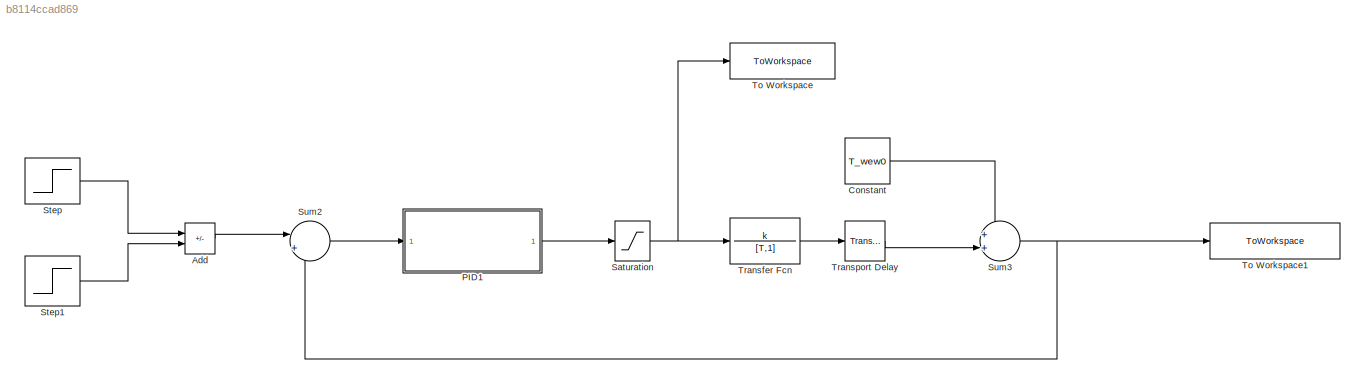
MODEL slx_b8114ccad869
KIND model
CONFIG AbsTol = auto
CONFIG EnableMultiTasking = off
CONFIG FixedStep = auto
CONFIG MaxStep = 0.01
CONFIG MinStep = auto
CONFIG RelTol = 1e-3
CONFIG SampleTimeConstraint = Unconstrained
CONFIG SolverName = VariableStepAuto
CONFIG StartTime = 0.0
CONFIG StopTime = 10.0
BLOCK [Sum] Add
  IconShape = rectangular
  Inputs = -+
BLOCK [Constant] Constant
  Value = T_wew0
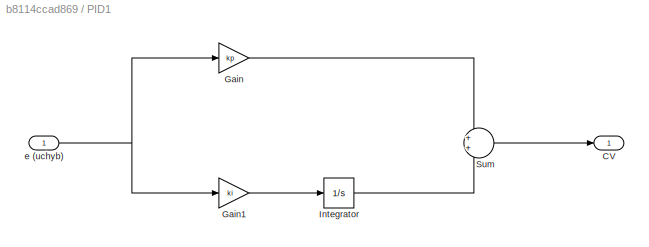
BLOCK [SubSystem] PID1
BLOCK [Outport] PID1/CV
BLOCK [Gain] PID1/Gain
  Gain = kp
BLOCK [Gain] PID1/Gain1
  Gain = ki
BLOCK [Integrator] PID1/Integrator
BLOCK [Sum] PID1/Sum
BLOCK [Inport] PID1/e (uchyb)
BLOCK [Saturate] Saturation
  UpperLimit = 0.1
BLOCK [Step] Step
  SampleTime = 0
BLOCK [Step] Step1
  After = T_wew_SP_0 + delta_Twew_SP
  Before = T_wew_SP_0
  SampleTime = 0
  Time = t_wew_SP
BLOCK [Sum] Sum2
  Inputs = |+-
BLOCK [Sum] Sum3
  Inputs = ++|
BLOCK [ToWorkspace] To Workspace
  FixptAsFi = on
  MaxDataPoints = inf
  SampleTime = -1
  VariableName = dwupunktowa_cv
BLOCK [ToWorkspace] To Workspace1
  FixptAsFi = on
  MaxDataPoints = inf
  SampleTime = -1
  VariableName = output
BLOCK [TransferFcn] Transfer Fcn
  Denominator = [T,1]
  Numerator = k
BLOCK [TransportDelay] Transport Delay
  DelayTime = To
LINE Add:1 -> Sum2:1
LINE Constant:1 -> Sum3:1
LINE PID1/Gain1:1 -> PID1/Integrator:1
LINE PID1/Gain:1 -> PID1/Sum:1
LINE PID1/Integrator:1 -> PID1/Sum:2
LINE PID1/Sum:1 -> PID1/CV:1
NET PID1/e (uchyb):1 -> PID1/Gain1:1, PID1/Gain:1
LINE PID1:1 -> Saturation:1
NET Saturation:1 -> To Workspace:1, Transfer Fcn:1
LINE Step1:1 -> Add:2
LINE Step:1 -> Add:1
LINE Sum2:1 -> PID1:1
NET Sum3:1 -> Sum2:2, To Workspace1:1
LINE Transfer Fcn:1 -> Transport Delay:1
LINE Transport Delay:1 -> Sum3:2
note: NET lines group one-source signal fan-out (src -> all destinations, sorted); 1:1 wires keep LINE
